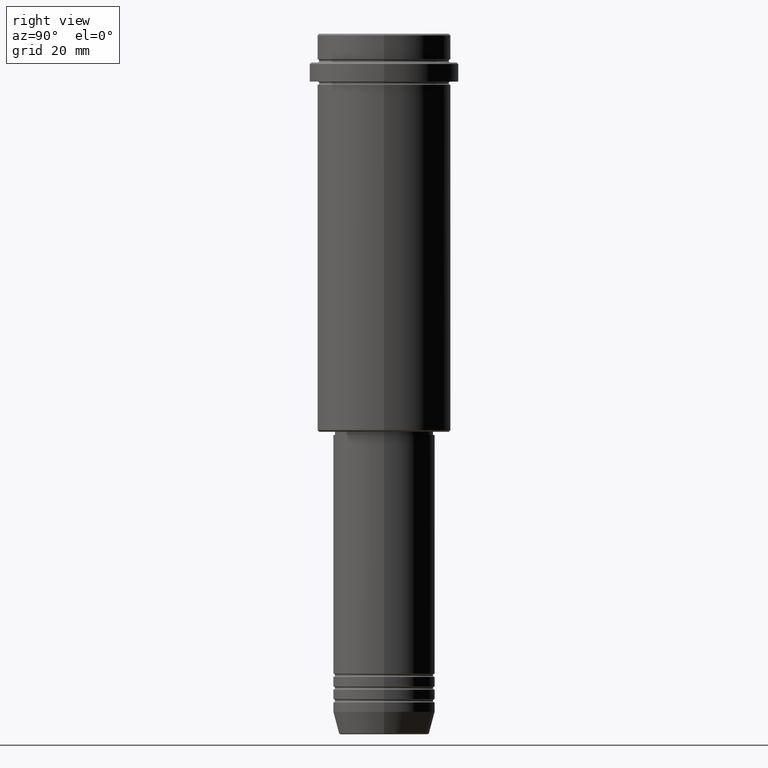
[diagram: clean part render]
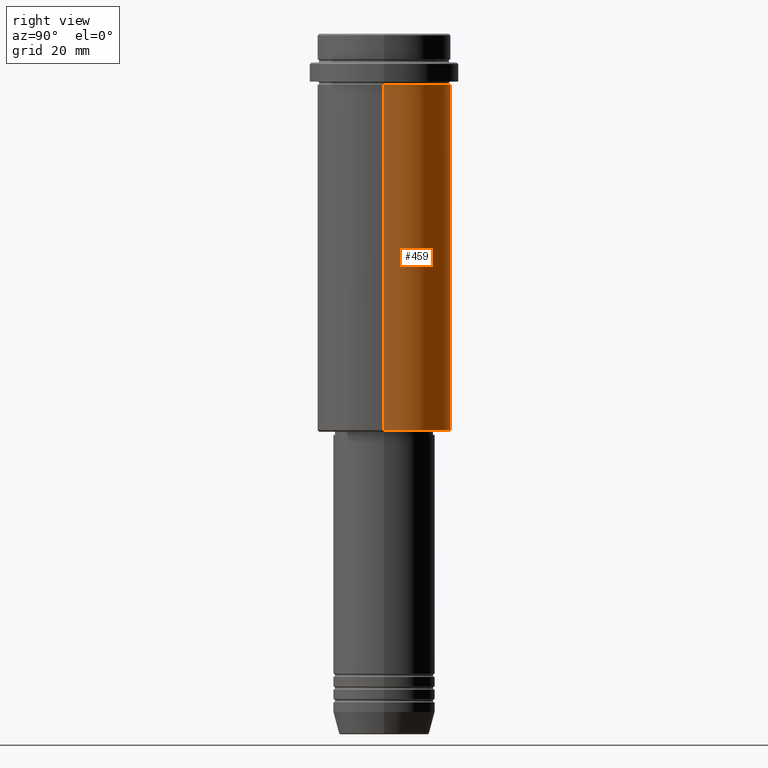
[diagram: same view with one face highlighted and labeled with its STEP entity id]
A machine part, right view. The second image highlights one B-rep face of the part: STEP entity #459.
In plain terms, the highlighted cylindrical surface (partial cylindrical patch) has radius 21 mm, axis along (-0, -0, 1).
Its self-contained STEP definition (entity closure, byte-faithful):
#32 = CARTESIAN_POINT ( 'NONE',  ( 0.000000000000000000, 0.000000000000000000, 0.000000000000000000 ) ) ;
#56 = VERTEX_POINT ( 'NONE', #669 ) ;
#87 = CARTESIAN_POINT ( 'NONE',  ( -20.99999999999999645, 2.571758278209441267E-15, -124.4999999999999432 ) ) ;
#116 = CIRCLE ( 'NONE', #302, 20.99999999999999645 ) ;
#177 = VERTEX_POINT ( 'NONE', #258 ) ;
#197 = DIRECTION ( 'NONE',  ( -0.000000000000000000, -0.000000000000000000, 1.000000000000000000 ) ) ;
#206 = EDGE_CURVE ( 'NONE', #1256, #1193, #116, .T. ) ;
#258 = CARTESIAN_POINT ( 'NONE',  ( -20.99999999999999645, 2.571758278209441267E-15, -16.00000000000000355 ) ) ;
#274 = CARTESIAN_POINT ( 'NONE',  ( 20.99999999999999645, 0.000000000000000000, -124.4999999999999432 ) ) ;
#302 = AXIS2_PLACEMENT_3D ( 'NONE', #460, #905, #1344 ) ;
#329 = ORIENTED_EDGE ( 'NONE', *, *, #1355, .F. ) ;
#347 = CARTESIAN_POINT ( 'NONE',  ( 20.99999999999999645, 0.000000000000000000, 0.000000000000000000 ) ) ;
#364 = ORIENTED_EDGE ( 'NONE', *, *, #665, .T. ) ;
#365 = CYLINDRICAL_SURFACE ( 'NONE', #1051, 20.99999999999999645 ) ;
#399 = VECTOR ( 'NONE', #1353, 1000.000000000000000 ) ;
#410 = ORIENTED_EDGE ( 'NONE', *, *, #206, .T. ) ;
#459 = ADVANCED_FACE ( 'NONE', ( #579 ), #365, .T. ) ;
#460 = CARTESIAN_POINT ( 'NONE',  ( 0.000000000000000000, 0.000000000000000000, -124.4999999999999432 ) ) ;
#474 = DIRECTION ( 'NONE',  ( -0.000000000000000000, -0.000000000000000000, 1.000000000000000000 ) ) ;
#519 = ORIENTED_EDGE ( 'NONE', *, *, #713, .F. ) ;
#554 = EDGE_LOOP ( 'NONE', ( #410, #364, #519, #329 ) ) ;
#558 = AXIS2_PLACEMENT_3D ( 'NONE', #1229, #688, #1305 ) ;
#579 = FACE_OUTER_BOUND ( 'NONE', #554, .T. ) ;
#612 = CIRCLE ( 'NONE', #558, 20.99999999999999645 ) ;
#665 = EDGE_CURVE ( 'NONE', #1193, #177, #1270, .T. ) ;
#669 = CARTESIAN_POINT ( 'NONE',  ( 20.99999999999999645, 0.000000000000000000, -16.00000000000000355 ) ) ;
#688 = DIRECTION ( 'NONE',  ( -0.000000000000000000, -0.000000000000000000, 1.000000000000000000 ) ) ;
#713 = EDGE_CURVE ( 'NONE', #56, #177, #612, .T. ) ;
#905 = DIRECTION ( 'NONE',  ( -0.000000000000000000, -0.000000000000000000, 1.000000000000000000 ) ) ;
#922 = LINE ( 'NONE', #347, #399 ) ;
#1051 = AXIS2_PLACEMENT_3D ( 'NONE', #32, #474, #1349 ) ;
#1082 = CARTESIAN_POINT ( 'NONE',  ( -20.99999999999999645, 2.571758278209441267E-15, 0.000000000000000000 ) ) ;
#1193 = VERTEX_POINT ( 'NONE', #87 ) ;
#1229 = CARTESIAN_POINT ( 'NONE',  ( 0.000000000000000000, 0.000000000000000000, -16.00000000000000355 ) ) ;
#1256 = VERTEX_POINT ( 'NONE', #274 ) ;
#1270 = LINE ( 'NONE', #1082, #1390 ) ;
#1305 = DIRECTION ( 'NONE',  ( 1.000000000000000000, 0.000000000000000000, 0.000000000000000000 ) ) ;
#1344 = DIRECTION ( 'NONE',  ( -1.000000000000000000, 0.000000000000000000, 0.000000000000000000 ) ) ;
#1349 = DIRECTION ( 'NONE',  ( 1.000000000000000000, 0.000000000000000000, 0.000000000000000000 ) ) ;
#1353 = DIRECTION ( 'NONE',  ( -0.000000000000000000, -0.000000000000000000, 1.000000000000000000 ) ) ;
#1355 = EDGE_CURVE ( 'NONE', #1256, #56, #922, .T. ) ;
#1390 = VECTOR ( 'NONE', #197, 1000.000000000000000 ) ;